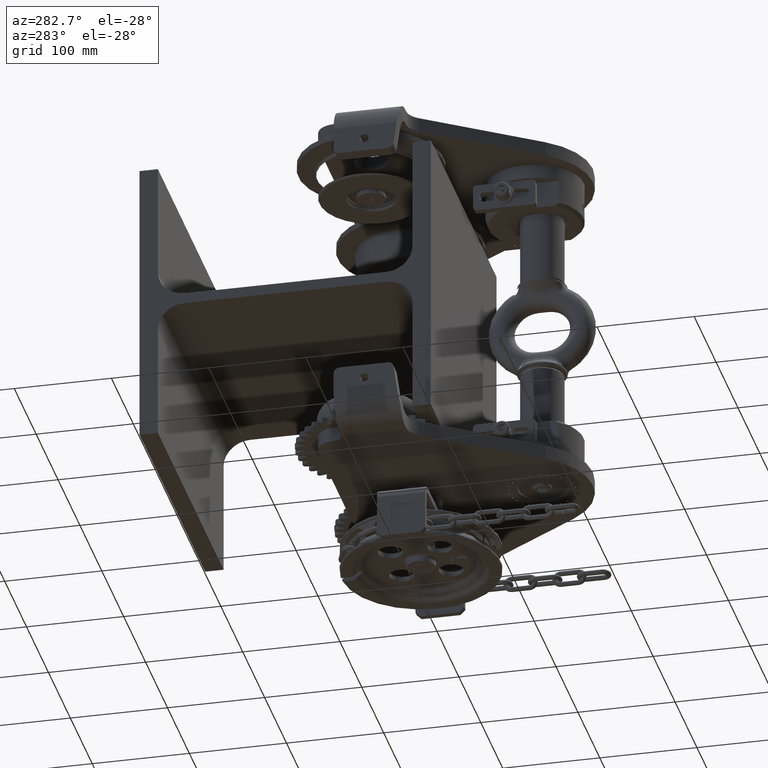
[diagram: clean part render]
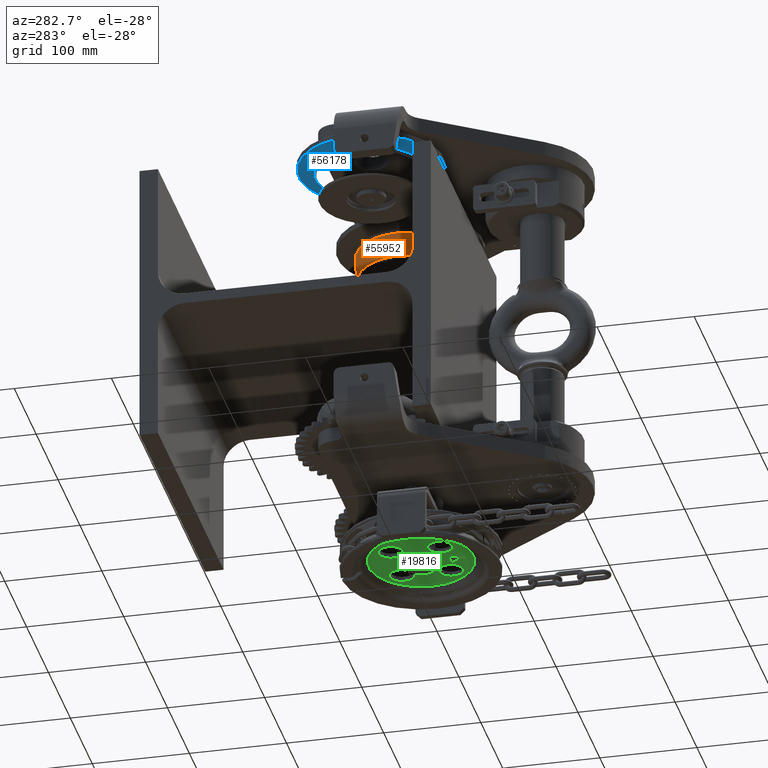
[diagram: same view with three faces highlighted in distinct colors, each labeled with its STEP entity id]
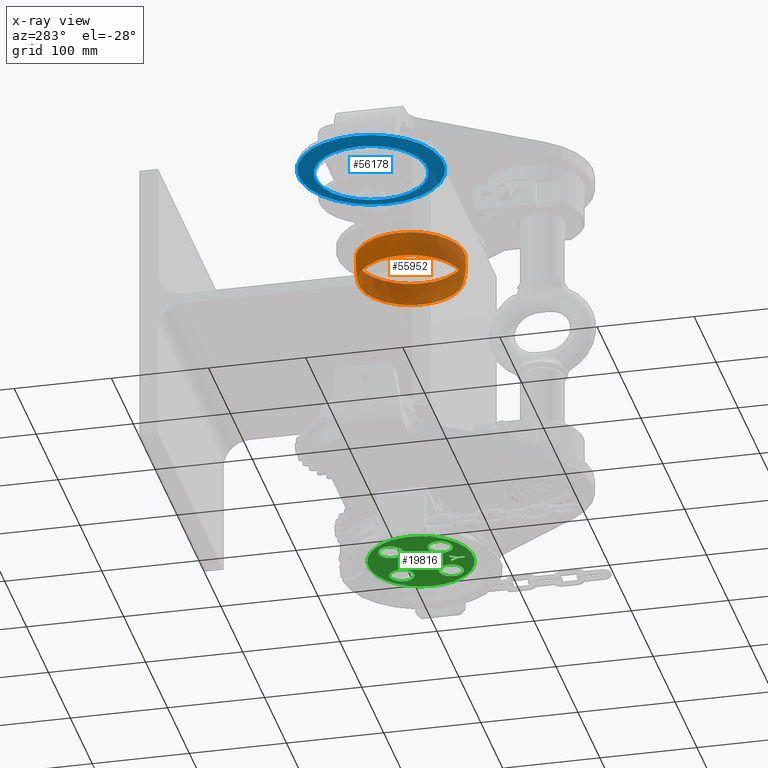
[diagram: x-ray of the same camera — body ghosted, the three highlighted faces saturated]
A machine part, auxiliary view with three faces highlighted in distinct colors.
The next image is the same camera in x-ray (body ghosted, the three faces saturated) — at least one of them is partly hidden behind the body in this view.
Their STEP definitions:

[orange] entity #55952 — the highlighted spherical surface has radius 56 mm.
#7324 = CARTESIAN_POINT ( 'NONE',  ( 90.00000000000011400, -74.99999999999974400, 149.2258411342690700 ) ) ;
#8837 = CARTESIAN_POINT ( 'NONE',  ( 90.00000000000011400, -74.99999999999974400, 141.0000000000000000 ) ) ;
#9672 = ORIENTED_EDGE ( 'NONE', *, *, #39786, .T. ) ;
#9943 = CIRCLE ( 'NONE', #21818, 53.38725172927907900 ) ;
#11214 = FACE_OUTER_BOUND ( 'NONE', #15259, .T. ) ;
#12634 = SPHERICAL_SURFACE ( 'NONE', #23788, 56.00000000000000700 ) ;
#13998 = DIRECTION ( 'NONE',  ( 1.000000000000000000, 0.0000000000000000000, 0.0000000000000000000 ) ) ;
#15259 = EDGE_LOOP ( 'NONE', ( #32505 ) ) ;
#16253 = DIRECTION ( 'NONE',  ( -1.000000000000000000, 0.0000000000000000000, 0.0000000000000000000 ) ) ;
#21818 = AXIS2_PLACEMENT_3D ( 'NONE', #31300, #55981, #13998 ) ;
#22609 = EDGE_LOOP ( 'NONE', ( #9672 ) ) ;
#22708 = VERTEX_POINT ( 'NONE', #28746 ) ;
#23788 = AXIS2_PLACEMENT_3D ( 'NONE', #8837, #59936, #45813 ) ;
#28746 = CARTESIAN_POINT ( 'NONE',  ( 34.60744149586737000, -74.99999999999974400, 149.2258411342690700 ) ) ;
#31300 = CARTESIAN_POINT ( 'NONE',  ( 90.00000000000011400, -74.99999999999974400, 124.0943396226415000 ) ) ;
#32291 = FACE_OUTER_BOUND ( 'NONE', #22609, .T. ) ;
#32505 = ORIENTED_EDGE ( 'NONE', *, *, #36516, .T. ) ;
#36516 = EDGE_CURVE ( 'NONE', #22708, #22708, #50471, .T. ) ;
#37273 = VERTEX_POINT ( 'NONE', #47033 ) ;
#39786 = EDGE_CURVE ( 'NONE', #37273, #37273, #9943, .T. ) ;
#44131 = DIRECTION ( 'NONE',  ( 0.0000000000000000000, 0.0000000000000000000, -1.000000000000000000 ) ) ;
#45813 = DIRECTION ( 'NONE',  ( 0.0000000000000000000, 1.000000000000000000, 0.0000000000000000000 ) ) ;
#47033 = CARTESIAN_POINT ( 'NONE',  ( 143.3872517292792000, -74.99999999999974400, 124.0943396226415000 ) ) ;
#48867 = AXIS2_PLACEMENT_3D ( 'NONE', #7324, #44131, #16253 ) ;
#50471 = CIRCLE ( 'NONE', #48867, 55.39255850413273700 ) ;
#55952 = ADVANCED_FACE ( 'NONE', ( #11214, #32291 ), #12634, .T. ) ;
#55981 = DIRECTION ( 'NONE',  ( 0.0000000000000000000, 0.0000000000000000000, 1.000000000000000000 ) ) ;
#59936 = DIRECTION ( 'NONE',  ( -1.000000000000000000, 0.0000000000000000000, 0.0000000000000000000 ) ) ;

[blue] entity #56178 — the highlighted conical surface has half-angle 78 deg.
#1741 = FACE_OUTER_BOUND ( 'NONE', #2554, .T. ) ;
#2554 = EDGE_LOOP ( 'NONE', ( #7403 ) ) ;
#2934 = EDGE_LOOP ( 'NONE', ( #33054 ) ) ;
#5369 = VERTEX_POINT ( 'NONE', #13072 ) ;
#7403 = ORIENTED_EDGE ( 'NONE', *, *, #12249, .T. ) ;
#9753 = DIRECTION ( 'NONE',  ( 0.0000000000000000000, 0.0000000000000000000, -1.000000000000000000 ) ) ;
#10827 = AXIS2_PLACEMENT_3D ( 'NONE', #34514, #20686, #15201 ) ;
#11151 = CONICAL_SURFACE ( 'NONE', #30016, 54.90901565316939100, 1.361356816555576100 ) ;
#12249 = EDGE_CURVE ( 'NONE', #28692, #28692, #33307, .T. ) ;
#13072 = CARTESIAN_POINT ( 'NONE',  ( -32.26371807702769700, -74.99999999999991500, 152.6009539972355100 ) ) ;
#15201 = DIRECTION ( 'NONE',  ( 1.000000000000000000, 0.0000000000000000000, 0.0000000000000000000 ) ) ;
#20155 = AXIS2_PLACEMENT_3D ( 'NONE', #56784, #9753, #24375 ) ;
#20686 = DIRECTION ( 'NONE',  ( 0.0000000000000000000, 0.0000000000000000000, 1.000000000000000000 ) ) ;
#24375 = DIRECTION ( 'NONE',  ( -1.000000000000000000, 0.0000000000000000000, 0.0000000000000000000 ) ) ;
#27062 = EDGE_CURVE ( 'NONE', #5369, #5369, #41532, .T. ) ;
#28692 = VERTEX_POINT ( 'NONE', #58352 ) ;
#29349 = FACE_BOUND ( 'NONE', #2934, .T. ) ;
#30016 = AXIS2_PLACEMENT_3D ( 'NONE', #48431, #34829, #57900 ) ;
#33054 = ORIENTED_EDGE ( 'NONE', *, *, #27062, .T. ) ;
#33307 = CIRCLE ( 'NONE', #20155, 74.60395584540884800 ) ;
#34514 = CARTESIAN_POINT ( 'NONE',  ( -89.99999999999997200, -74.99999999999991500, 152.6009539972355100 ) ) ;
#34829 = DIRECTION ( 'NONE',  ( 0.0000000000000000000, 0.0000000000000000000, 1.000000000000000000 ) ) ;
#41532 = CIRCLE ( 'NONE', #10827, 57.73628192297227500 ) ;
#48431 = CARTESIAN_POINT ( 'NONE',  ( -89.99999999999997200, -74.99999999999991500, 152.0000000000005100 ) ) ;
#56178 = ADVANCED_FACE ( 'NONE', ( #1741, #29349 ), #11151, .T. ) ;
#56784 = CARTESIAN_POINT ( 'NONE',  ( -89.99999999999997200, -74.99999999999991500, 156.1862887695597000 ) ) ;
#57900 = DIRECTION ( 'NONE',  ( 1.000000000000000000, 0.0000000000000000000, 0.0000000000000000000 ) ) ;
#58352 = CARTESIAN_POINT ( 'NONE',  ( -164.6039558454088200, -74.99999999999991500, 156.1862887695597000 ) ) ;

[green] entity #19816 — the highlighted planar face has unit normal (0, 0, -1).
#15 = CARTESIAN_POINT ( 'NONE',  ( -2.081668171172171000E-014, -124.0800000000000700, -245.9999999999997700 ) ) ;
#20 = CIRCLE ( 'NONE', #40444, 12.49999999999999600 ) ;
#601 = DIRECTION ( 'NONE',  ( 0.5000000000000560700, 0.8660254037844062900, 1.177530919856810500E-017 ) ) ;
#732 = DIRECTION ( 'NONE',  ( -3.009260542487172500E-017, 1.000000000000000000, 1.359695587116880000E-017 ) ) ;
#2481 = VERTEX_POINT ( 'NONE', #50860 ) ;
#2613 = VERTEX_POINT ( 'NONE', #5756 ) ;
#3086 = CARTESIAN_POINT ( 'NONE',  ( 5.999999999997458900, -136.1175139198375600, -245.9999999999997700 ) ) ;
#4407 = EDGE_CURVE ( 'NONE', #20145, #49009, #21349, .T. ) ;
#4471 = LINE ( 'NONE', #32661, #8115 ) ;
#4712 = CARTESIAN_POINT ( 'NONE',  ( 1.499999999997649000, -143.9117425538968300, -245.9999999999997700 ) ) ;
#4776 = CARTESIAN_POINT ( 'NONE',  ( 12.95584412271384000, -131.5358441227169000, -245.9999999999997700 ) ) ;
#5061 = EDGE_LOOP ( 'NONE', ( #58555 ) ) ;
#5756 = CARTESIAN_POINT ( 'NONE',  ( 1.499999999997649000, -143.9117425538968300, -245.9999999999997700 ) ) ;
#6142 = CIRCLE ( 'NONE', #18856, 12.50000000000001100 ) ;
#6454 = CARTESIAN_POINT ( 'NONE',  ( 2.633021287094396100, -136.1175139198377300, -245.9999999999997700 ) ) ;
#6939 = EDGE_LOOP ( 'NONE', ( #56177 ) ) ;
#6989 = DIRECTION ( 'NONE',  ( -1.000000000000000000, 0.0000000000000000000, 0.0000000000000000000 ) ) ;
#7345 = VERTEX_POINT ( 'NONE', #39335 ) ;
#7560 = EDGE_CURVE ( 'NONE', #50952, #14179, #41790, .T. ) ;
#8099 = AXIS2_PLACEMENT_3D ( 'NONE', #15, #23142, #22948 ) ;
#8115 = VECTOR ( 'NONE', #42005, 1000.000000000000000 ) ;
#8254 = VERTEX_POINT ( 'NONE', #59347 ) ;
#8350 = VERTEX_POINT ( 'NONE', #39214 ) ;
#10088 = FACE_BOUND ( 'NONE', #25997, .T. ) ;
#10253 = CARTESIAN_POINT ( 'NONE',  ( -37.95584412272131700, -131.5358441227145600, -245.9999999999997700 ) ) ;
#10790 = DIRECTION ( 'NONE',  ( 0.5000000000000521800, -0.8660254037844086200, -1.177530919856734900E-017 ) ) ;
#11527 = FACE_BOUND ( 'NONE', #16348, .T. ) ;
#13170 = DIRECTION ( 'NONE',  ( -0.5000000000000171000, -0.8660254037844287200, -1.177530919856841000E-017 ) ) ;
#13996 = VERTEX_POINT ( 'NONE', #4776 ) ;
#14179 = VERTEX_POINT ( 'NONE', #18759 ) ;
#15086 = DIRECTION ( 'NONE',  ( 1.000000000000000000, 0.0000000000000000000, 0.0000000000000000000 ) ) ;
#15098 = EDGE_CURVE ( 'NONE', #16185, #50952, #4471, .T. ) ;
#15337 = LINE ( 'NONE', #4712, #39391 ) ;
#15482 = DIRECTION ( 'NONE',  ( -7.888609052210118100E-031, -1.359695587112886200E-017, 1.000000000000000000 ) ) ;
#15543 = CARTESIAN_POINT ( 'NONE',  ( -1.500000000003023100, -151.1175139198374200, -245.9999999999997700 ) ) ;
#15634 = ORIENTED_EDGE ( 'NONE', *, *, #31516, .F. ) ;
#15820 = LINE ( 'NONE', #3086, #48560 ) ;
#16185 = VERTEX_POINT ( 'NONE', #18259 ) ;
#16348 = EDGE_LOOP ( 'NONE', ( #45943 ) ) ;
#16729 = AXIS2_PLACEMENT_3D ( 'NONE', #59330, #22014, #54470 ) ;
#16949 = EDGE_CURVE ( 'NONE', #49009, #2613, #15820, .T. ) ;
#17734 = EDGE_LOOP ( 'NONE', ( #57695 ) ) ;
#18259 = CARTESIAN_POINT ( 'NONE',  ( -1.500000000003023400, -143.9117425538966000, -245.9999999999997700 ) ) ;
#18271 = EDGE_CURVE ( 'NONE', #38066, #38066, #6142, .T. ) ;
#18496 = DIRECTION ( 'NONE',  ( -1.000000000000000000, 0.0000000000000000000, 0.0000000000000000000 ) ) ;
#18759 = CARTESIAN_POINT ( 'NONE',  ( -2.633021287099461400, -136.1175139198377300, -245.9999999999997700 ) ) ;
#18856 = AXIS2_PLACEMENT_3D ( 'NONE', #27894, #46357, #18496 ) ;
#19304 = CARTESIAN_POINT ( 'NONE',  ( 2.633021287094396100, -136.1175139198377300, -245.9999999999997700 ) ) ;
#19816 = ADVANCED_FACE ( 'NONE', ( #28276, #11527, #34818, #22424, #54365, #51469, #10088 ), #27639, .T. ) ;
#20006 = ORIENTED_EDGE ( 'NONE', *, *, #25901, .F. ) ;
#20145 = VERTEX_POINT ( 'NONE', #19304 ) ;
#20891 = CIRCLE ( 'NONE', #16729, 12.49999999999999600 ) ;
#21349 = LINE ( 'NONE', #6454, #48303 ) ;
#21736 = VECTOR ( 'NONE', #601, 1000.000000000000000 ) ;
#21863 = CARTESIAN_POINT ( 'NONE',  ( -6.000000000002524200, -136.1175139198375600, -245.9999999999997700 ) ) ;
#22014 = DIRECTION ( 'NONE',  ( 7.888609052210118100E-031, 1.359695587112886200E-017, -1.000000000000000000 ) ) ;
#22424 = FACE_BOUND ( 'NONE', #5061, .T. ) ;
#22551 = CARTESIAN_POINT ( 'NONE',  ( 5.999999999997458900, -136.1175139198375600, -245.9999999999997700 ) ) ;
#22948 = DIRECTION ( 'NONE',  ( -1.000000000000000000, -6.963644222657828000E-031, -7.888609052210118100E-031 ) ) ;
#23142 = DIRECTION ( 'NONE',  ( 7.888609052210118100E-031, 1.359695587112886200E-017, -1.000000000000000000 ) ) ;
#24217 = CARTESIAN_POINT ( 'NONE',  ( -2.633021287099461400, -136.1175139198377300, -245.9999999999997700 ) ) ;
#24306 = ORIENTED_EDGE ( 'NONE', *, *, #48544, .F. ) ;
#24351 = CARTESIAN_POINT ( 'NONE',  ( -2.081668171172168200E-014, -106.0799999999998800, -245.9999999999998300 ) ) ;
#24487 = EDGE_CURVE ( 'NONE', #2481, #2481, #20, .T. ) ;
#24880 = VERTEX_POINT ( 'NONE', #38286 ) ;
#25901 = EDGE_CURVE ( 'NONE', #8254, #8254, #51376, .T. ) ;
#25997 = EDGE_LOOP ( 'NONE', ( #38363, #15634, #58836, #48794, #28288, #24306, #56274, #26501, #34877 ) ) ;
#26501 = ORIENTED_EDGE ( 'NONE', *, *, #16949, .F. ) ;
#26534 = CARTESIAN_POINT ( 'NONE',  ( -37.95584412271898600, -80.62415587727954900, -245.9999999999997700 ) ) ;
#26735 = AXIS2_PLACEMENT_3D ( 'NONE', #24351, #39787, #38155 ) ;
#27639 = PLANE ( 'NONE',  #8099 ) ;
#27894 = CARTESIAN_POINT ( 'NONE',  ( -25.45584412271897200, -80.62415587727954900, -245.9999999999997700 ) ) ;
#28276 = FACE_BOUND ( 'NONE', #17734, .T. ) ;
#28288 = ORIENTED_EDGE ( 'NONE', *, *, #56869, .F. ) ;
#28806 = CARTESIAN_POINT ( 'NONE',  ( 1.499999999997454700, -151.1175139198374200, -245.9999999999997700 ) ) ;
#29053 = LINE ( 'NONE', #37530, #21736 ) ;
#29374 = EDGE_LOOP ( 'NONE', ( #57341 ) ) ;
#29898 = LINE ( 'NONE', #24217, #58861 ) ;
#29921 = LINE ( 'NONE', #47019, #39360 ) ;
#31336 = EDGE_CURVE ( 'NONE', #2613, #7345, #15337, .T. ) ;
#31419 = VERTEX_POINT ( 'NONE', #10253 ) ;
#31516 = EDGE_CURVE ( 'NONE', #14179, #8350, #29898, .T. ) ;
#32343 = AXIS2_PLACEMENT_3D ( 'NONE', #48221, #15482, #15086 ) ;
#32661 = CARTESIAN_POINT ( 'NONE',  ( -6.000000000002524200, -136.1175139198375600, -245.9999999999997700 ) ) ;
#34818 = FACE_BOUND ( 'NONE', #29374, .T. ) ;
#34877 = ORIENTED_EDGE ( 'NONE', *, *, #4407, .F. ) ;
#36441 = CARTESIAN_POINT ( 'NONE',  ( -2.633021287099461400, -136.1175139198377300, -245.9999999999997700 ) ) ;
#37403 = DIRECTION ( 'NONE',  ( -2.696297446068665600E-014, -1.000000000000000000, -1.359695587116880000E-017 ) ) ;
#37530 = CARTESIAN_POINT ( 'NONE',  ( 2.633021287094396100, -136.1175139198377300, -245.9999999999997700 ) ) ;
#38066 = VERTEX_POINT ( 'NONE', #26534 ) ;
#38155 = DIRECTION ( 'NONE',  ( 1.000000000000000000, 0.0000000000000000000, 0.0000000000000000000 ) ) ;
#38286 = CARTESIAN_POINT ( 'NONE',  ( 18.00000000000016300, -106.0799999999998800, -245.9999999999998300 ) ) ;
#38363 = ORIENTED_EDGE ( 'NONE', *, *, #47535, .F. ) ;
#39062 = DIRECTION ( 'NONE',  ( -1.000000000000000000, 0.0000000000000000000, 0.0000000000000000000 ) ) ;
#39214 = CARTESIAN_POINT ( 'NONE',  ( -2.546574062733952800E-012, -140.6780405664993600, -245.9999999999997700 ) ) ;
#39297 = EDGE_CURVE ( 'NONE', #13996, #13996, #20891, .T. ) ;
#39335 = CARTESIAN_POINT ( 'NONE',  ( 1.499999999997454700, -151.1175139198374200, -245.9999999999997700 ) ) ;
#39360 = VECTOR ( 'NONE', #732, 1000.000000000000000 ) ;
#39391 = VECTOR ( 'NONE', #37403, 1000.000000000000000 ) ;
#39787 = DIRECTION ( 'NONE',  ( -7.888609052210118100E-031, -1.359695587112886200E-017, 1.000000000000000000 ) ) ;
#40444 = AXIS2_PLACEMENT_3D ( 'NONE', #52812, #43346, #39062 ) ;
#41790 = LINE ( 'NONE', #36441, #56983 ) ;
#42005 = DIRECTION ( 'NONE',  ( -0.5000000000000026600, 0.8660254037844371500, 1.177530919856773700E-017 ) ) ;
#42027 = VECTOR ( 'NONE', #56926, 1000.000000000000000 ) ;
#43346 = DIRECTION ( 'NONE',  ( 7.888609052210118100E-031, 1.359695587112886200E-017, -1.000000000000000000 ) ) ;
#43655 = DIRECTION ( 'NONE',  ( 1.000000000000000000, 4.946079791225816300E-014, 1.461377191786784700E-030 ) ) ;
#45943 = ORIENTED_EDGE ( 'NONE', *, *, #18271, .F. ) ;
#46154 = EDGE_CURVE ( 'NONE', #31419, #31419, #57705, .T. ) ;
#46357 = DIRECTION ( 'NONE',  ( 7.888609052210118100E-031, 1.359695587112886200E-017, -1.000000000000000000 ) ) ;
#47019 = CARTESIAN_POINT ( 'NONE',  ( -1.500000000003023400, -143.9117425538966000, -245.9999999999997700 ) ) ;
#47225 = EDGE_LOOP ( 'NONE', ( #20006 ) ) ;
#47535 = EDGE_CURVE ( 'NONE', #8350, #20145, #29053, .T. ) ;
#48221 = CARTESIAN_POINT ( 'NONE',  ( -2.081668171172168200E-014, -106.0799999999998800, -245.9999999999997400 ) ) ;
#48303 = VECTOR ( 'NONE', #43655, 1000.000000000000000 ) ;
#48544 = EDGE_CURVE ( 'NONE', #7345, #48734, #53571, .T. ) ;
#48560 = VECTOR ( 'NONE', #13170, 1000.000000000000100 ) ;
#48636 = DIRECTION ( 'NONE',  ( 7.888609052210118100E-031, 1.359695587112886200E-017, -1.000000000000000000 ) ) ;
#48734 = VERTEX_POINT ( 'NONE', #15543 ) ;
#48794 = ORIENTED_EDGE ( 'NONE', *, *, #15098, .F. ) ;
#49009 = VERTEX_POINT ( 'NONE', #22551 ) ;
#50819 = EDGE_CURVE ( 'NONE', #24880, #24880, #59919, .T. ) ;
#50860 = CARTESIAN_POINT ( 'NONE',  ( 12.95584412271614400, -80.62415587728182200, -245.9999999999997700 ) ) ;
#50952 = VERTEX_POINT ( 'NONE', #21863 ) ;
#51376 = CIRCLE ( 'NONE', #32343, 54.07502783967818500 ) ;
#51469 = FACE_OUTER_BOUND ( 'NONE', #47225, .T. ) ;
#52812 = CARTESIAN_POINT ( 'NONE',  ( 25.45584412271614000, -80.62415587728182200, -245.9999999999997700 ) ) ;
#53571 = LINE ( 'NONE', #28806, #42027 ) ;
#54365 = FACE_BOUND ( 'NONE', #6939, .T. ) ;
#54399 = AXIS2_PLACEMENT_3D ( 'NONE', #59496, #48636, #6989 ) ;
#54470 = DIRECTION ( 'NONE',  ( -1.000000000000000000, 0.0000000000000000000, 0.0000000000000000000 ) ) ;
#55249 = DIRECTION ( 'NONE',  ( 1.000000000000000000, -4.946079791225816300E-014, 1.163446186552396900E-031 ) ) ;
#56177 = ORIENTED_EDGE ( 'NONE', *, *, #50819, .T. ) ;
#56274 = ORIENTED_EDGE ( 'NONE', *, *, #31336, .F. ) ;
#56869 = EDGE_CURVE ( 'NONE', #48734, #16185, #29921, .T. ) ;
#56926 = DIRECTION ( 'NONE',  ( -1.000000000000000000, -6.963644222657828000E-031, -7.888609052210118100E-031 ) ) ;
#56983 = VECTOR ( 'NONE', #55249, 1000.000000000000000 ) ;
#57341 = ORIENTED_EDGE ( 'NONE', *, *, #46154, .F. ) ;
#57695 = ORIENTED_EDGE ( 'NONE', *, *, #24487, .F. ) ;
#57705 = CIRCLE ( 'NONE', #54399, 12.50000000000001100 ) ;
#58555 = ORIENTED_EDGE ( 'NONE', *, *, #39297, .F. ) ;
#58836 = ORIENTED_EDGE ( 'NONE', *, *, #7560, .F. ) ;
#58861 = VECTOR ( 'NONE', #10790, 1000.000000000000100 ) ;
#59330 = CARTESIAN_POINT ( 'NONE',  ( 25.45584412271383800, -131.5358441227169000, -245.9999999999997700 ) ) ;
#59347 = CARTESIAN_POINT ( 'NONE',  ( 54.07502783967816400, -106.0799999999998800, -245.9999999999997400 ) ) ;
#59496 = CARTESIAN_POINT ( 'NONE',  ( -25.45584412272130200, -131.5358441227145600, -245.9999999999997700 ) ) ;
#59919 = CIRCLE ( 'NONE', #26735, 18.00000000000018100 ) ;